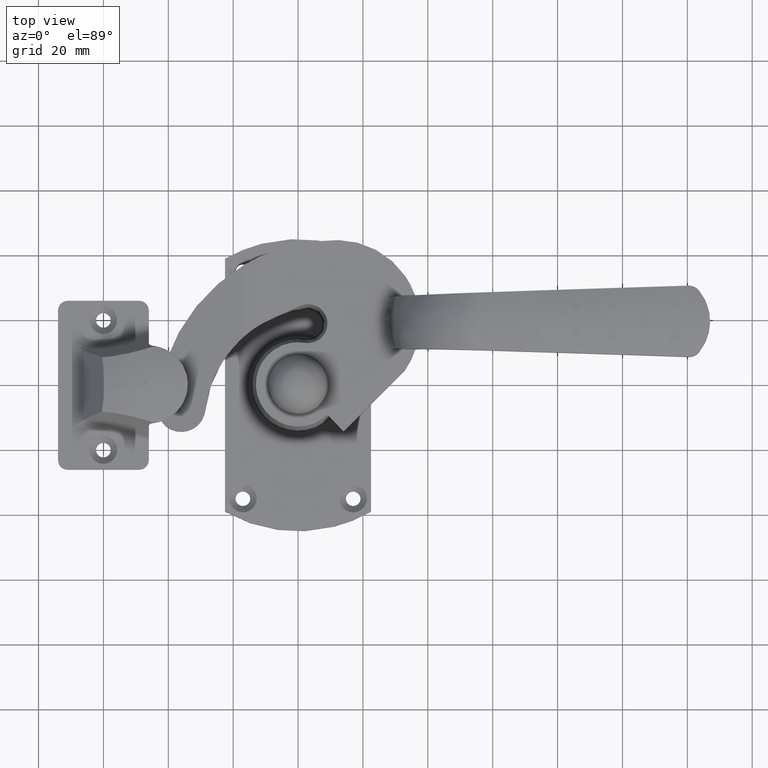
[diagram: clean part render]
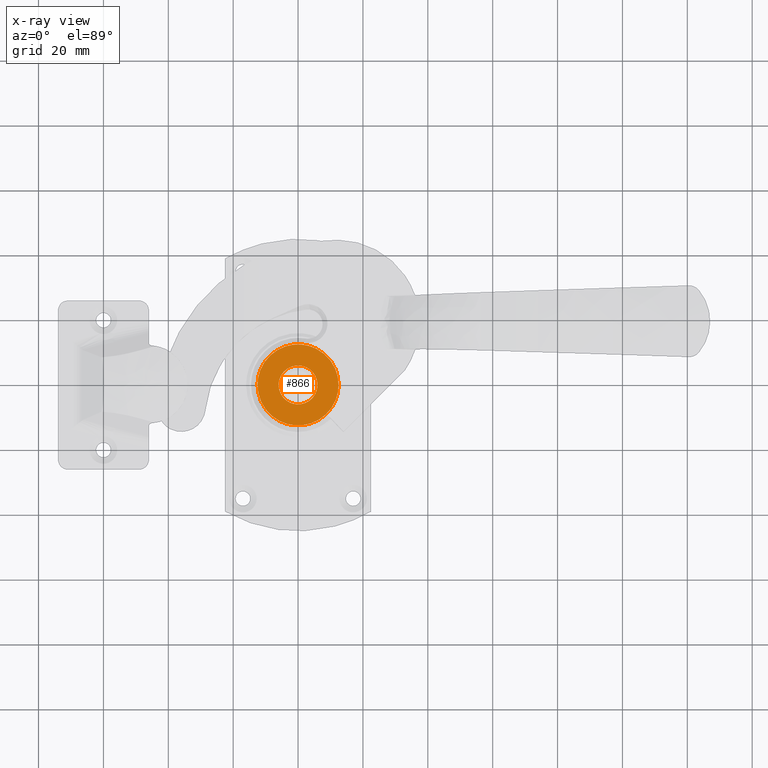
[diagram: x-ray — body ghosted, one internal face saturated and labeled with its STEP entity id]
A machine part, top view, then the same camera in x-ray: the body is ghosted and one INTERNAL B-rep face — a face not visible from any outside direction — is saturated and labeled: STEP entity #866.
In plain terms, the highlighted face is a freeform B-spline surface patch.
Its self-contained STEP definition (entity closure, byte-faithful):
#503=CARTESIAN_POINT('',(6.0,0.0,6.999999999999920));
#504=VERTEX_POINT('',#503);
#505=CARTESIAN_POINT('',(0.470754574628246,5.981504002378212,6.999999999999920));
#506=VERTEX_POINT('',#505);
#507=CARTESIAN_POINT('',(6.0,0.0,6.999999999999920));
#508=CARTESIAN_POINT('',(6.0,5.546342949463400,6.999999999999921));
#509=CARTESIAN_POINT('',(0.470754574628246,5.981504002378212,6.999999999999920));
#517=(BOUNDED_CURVE()B_SPLINE_CURVE(2,(#507,#508,#509),.UNSPECIFIED.,.F.,.U.)B_SPLINE_CURVE_WITH_KNOTS((3,3),(0.0,0.236331300617797),.UNSPECIFIED.)CURVE()GEOMETRIC_REPRESENTATION_ITEM()RATIONAL_B_SPLINE_CURVE((1.0,0.723120658622735,0.969723356140574))REPRESENTATION_ITEM(''));
#518=EDGE_CURVE('',#504,#506,#517,.T.);
#520=CARTESIAN_POINT('',(-0.470754574628246,-5.981504002378212,6.999999999999920));
#521=VERTEX_POINT('',#520);
#522=CARTESIAN_POINT('',(-0.470754574628246,-5.981504002378213,6.999999999999920));
#523=CARTESIAN_POINT('',(-0.235740642308405,-6.0,6.999999999999920));
#524=CARTESIAN_POINT('',(0.0,-6.0,6.999999999999920));
#525=CARTESIAN_POINT('',(6.0,-6.0,6.999999999999920));
#526=CARTESIAN_POINT('',(6.0,0.0,6.999999999999920));
#534=(BOUNDED_CURVE()B_SPLINE_CURVE(2,(#522,#523,#524,#525,#526),.UNSPECIFIED.,.F.,.U.)B_SPLINE_CURVE_WITH_KNOTS((3,2,3),(0.736331300617797,0.750000000000000,1.0),.UNSPECIFIED.)CURVE()GEOMETRIC_REPRESENTATION_ITEM()RATIONAL_B_SPLINE_CURVE((0.969723356140574,0.983986122563812,1.0,0.707106781186548,1.0))REPRESENTATION_ITEM(''));
#535=EDGE_CURVE('',#521,#504,#534,.T.);
#602=CARTESIAN_POINT('',(-6.0,0.0,6.999999999999920));
#603=VERTEX_POINT('',#602);
#604=CARTESIAN_POINT('',(0.470754574628246,5.981504002378213,6.999999999999920));
#605=CARTESIAN_POINT('',(0.235740642308405,6.0,6.999999999999920));
#606=CARTESIAN_POINT('',(0.0,6.0,6.999999999999920));
#607=CARTESIAN_POINT('',(-6.0,6.0,6.999999999999920));
#608=CARTESIAN_POINT('',(-6.0,0.0,6.999999999999920));
#616=(BOUNDED_CURVE()B_SPLINE_CURVE(2,(#604,#605,#606,#607,#608),.UNSPECIFIED.,.F.,.U.)B_SPLINE_CURVE_WITH_KNOTS((3,2,3),(0.236331300617797,0.250000000000000,0.500000000000000),.UNSPECIFIED.)CURVE()GEOMETRIC_REPRESENTATION_ITEM()RATIONAL_B_SPLINE_CURVE((0.969723356140574,0.983986122563812,1.0,0.707106781186548,1.0))REPRESENTATION_ITEM(''));
#617=EDGE_CURVE('',#506,#603,#616,.T.);
#651=CARTESIAN_POINT('',(-6.0,0.0,6.999999999999920));
#652=CARTESIAN_POINT('',(-6.000000000000001,-5.546342949463366,6.999999999999920));
#653=CARTESIAN_POINT('',(-0.470754574628246,-5.981504002378212,6.999999999999920));
#661=(BOUNDED_CURVE()B_SPLINE_CURVE(2,(#651,#652,#653),.UNSPECIFIED.,.F.,.U.)B_SPLINE_CURVE_WITH_KNOTS((3,3),(0.500000000000000,0.736331300617796),.UNSPECIFIED.)CURVE()GEOMETRIC_REPRESENTATION_ITEM()RATIONAL_B_SPLINE_CURVE((1.0,0.723120658622736,0.969723356140572))REPRESENTATION_ITEM(''));
#662=EDGE_CURVE('',#603,#521,#661,.T.);
#685=CARTESIAN_POINT('',(12.500000000000000,0.0,6.999999999999920));
#686=VERTEX_POINT('',#685);
#687=CARTESIAN_POINT('',(0.980738696917964,12.461466671638920,6.999999999999920));
#688=VERTEX_POINT('',#687);
#689=CARTESIAN_POINT('',(12.500000000000000,0.0,6.999999999999920));
#690=CARTESIAN_POINT('',(12.499999999999996,11.554881145132493,6.999999999999921));
#691=CARTESIAN_POINT('',(0.980738696917964,12.461466671638926,6.999999999999920));
#699=(BOUNDED_CURVE()B_SPLINE_CURVE(2,(#689,#690,#691),.UNSPECIFIED.,.F.,.U.)B_SPLINE_CURVE_WITH_KNOTS((3,3),(0.0,0.236331300623966),.UNSPECIFIED.)CURVE()GEOMETRIC_REPRESENTATION_ITEM()RATIONAL_B_SPLINE_CURVE((1.0,0.723120658615508,0.969723356153448))REPRESENTATION_ITEM(''));
#700=EDGE_CURVE('',#686,#688,#699,.T.);
#741=CARTESIAN_POINT('',(-0.980738696917964,-12.461466671638920,6.999999999999920));
#742=VERTEX_POINT('',#741);
#748=CARTESIAN_POINT('',(-0.980738696917964,-12.461466671638924,6.999999999999920));
#749=CARTESIAN_POINT('',(-0.491126337917255,-12.499999999999998,6.999999999999921));
#750=CARTESIAN_POINT('',(0.0,-12.500000000000000,6.999999999999920));
#751=CARTESIAN_POINT('',(12.499999999999998,-12.499999999999998,6.999999999999920));
#752=CARTESIAN_POINT('',(12.500000000000000,0.0,6.999999999999920));
#760=(BOUNDED_CURVE()B_SPLINE_CURVE(2,(#748,#749,#750,#751,#752),.UNSPECIFIED.,.F.,.U.)B_SPLINE_CURVE_WITH_KNOTS((3,2,3),(0.736331300623966,0.750000000000000,1.0),.UNSPECIFIED.)CURVE()GEOMETRIC_REPRESENTATION_ITEM()RATIONAL_B_SPLINE_CURVE((0.969723356153448,0.983986122571039,1.0,0.707106781186547,1.0))REPRESENTATION_ITEM(''));
#761=EDGE_CURVE('',#742,#686,#760,.T.);
#784=CARTESIAN_POINT('',(-12.500000000000000,0.0,6.999999999999920));
#785=VERTEX_POINT('',#784);
#786=CARTESIAN_POINT('',(0.980738696917964,12.461466671638922,6.999999999999920));
#787=CARTESIAN_POINT('',(0.491126337917254,12.499999999999996,6.999999999999920));
#788=CARTESIAN_POINT('',(0.0,12.500000000000000,6.999999999999920));
#789=CARTESIAN_POINT('',(-12.499999999999998,12.499999999999998,6.999999999999920));
#790=CARTESIAN_POINT('',(-12.500000000000000,0.0,6.999999999999920));
#798=(BOUNDED_CURVE()B_SPLINE_CURVE(2,(#786,#787,#788,#789,#790),.UNSPECIFIED.,.F.,.U.)B_SPLINE_CURVE_WITH_KNOTS((3,2,3),(0.236331300623966,0.250000000000000,0.500000000000000),.UNSPECIFIED.)CURVE()GEOMETRIC_REPRESENTATION_ITEM()RATIONAL_B_SPLINE_CURVE((0.969723356153448,0.983986122571039,1.0,0.707106781186547,1.0))REPRESENTATION_ITEM(''));
#799=EDGE_CURVE('',#688,#785,#798,.T.);
#801=CARTESIAN_POINT('',(-12.500000000000000,0.0,6.999999999999920));
#802=CARTESIAN_POINT('',(-12.499999999999998,-11.554881145132558,6.999999999999922));
#803=CARTESIAN_POINT('',(-0.980738696917964,-12.461466671638917,6.999999999999920));
#811=(BOUNDED_CURVE()B_SPLINE_CURVE(2,(#801,#802,#803),.UNSPECIFIED.,.F.,.U.)B_SPLINE_CURVE_WITH_KNOTS((3,3),(0.500000000000000,0.736331300623966),.UNSPECIFIED.)CURVE()GEOMETRIC_REPRESENTATION_ITEM()RATIONAL_B_SPLINE_CURVE((1.0,0.723120658615507,0.969723356153450))REPRESENTATION_ITEM(''));
#812=EDGE_CURVE('',#785,#742,#811,.T.);
#849=CARTESIAN_POINT('',(13.748749951545150,13.744934878449691,6.999999999999920));
#850=CARTESIAN_POINT('',(-13.748750622097401,13.744934878449691,6.999999999999920));
#851=CARTESIAN_POINT('',(13.748749951545150,-13.744935101967110,6.999999999999920));
#852=CARTESIAN_POINT('',(-13.748750622097401,-13.744935101967110,6.999999999999920));
#853=B_SPLINE_SURFACE_WITH_KNOTS('',1,1,((#849,#851),(#850,#852)),.UNSPECIFIED.,.F.,.F.,.U.,(2,2),(2,2),(0.0,27.497500573642551),(0.0,27.489869980416810),.UNSPECIFIED.);
#854=ORIENTED_EDGE('',*,*,#761,.F.);
#855=ORIENTED_EDGE('',*,*,#812,.F.);
#856=ORIENTED_EDGE('',*,*,#799,.F.);
#857=ORIENTED_EDGE('',*,*,#700,.F.);
#858=EDGE_LOOP('',(#854,#855,#856,#857));
#859=FACE_OUTER_BOUND('',#858,.T.);
#860=ORIENTED_EDGE('',*,*,#662,.T.);
#861=ORIENTED_EDGE('',*,*,#535,.T.);
#862=ORIENTED_EDGE('',*,*,#518,.T.);
#863=ORIENTED_EDGE('',*,*,#617,.T.);
#864=EDGE_LOOP('',(#860,#861,#862,#863));
#865=FACE_BOUND('',#864,.T.);
#866=ADVANCED_FACE('',(#859,#865),#853,.F.);